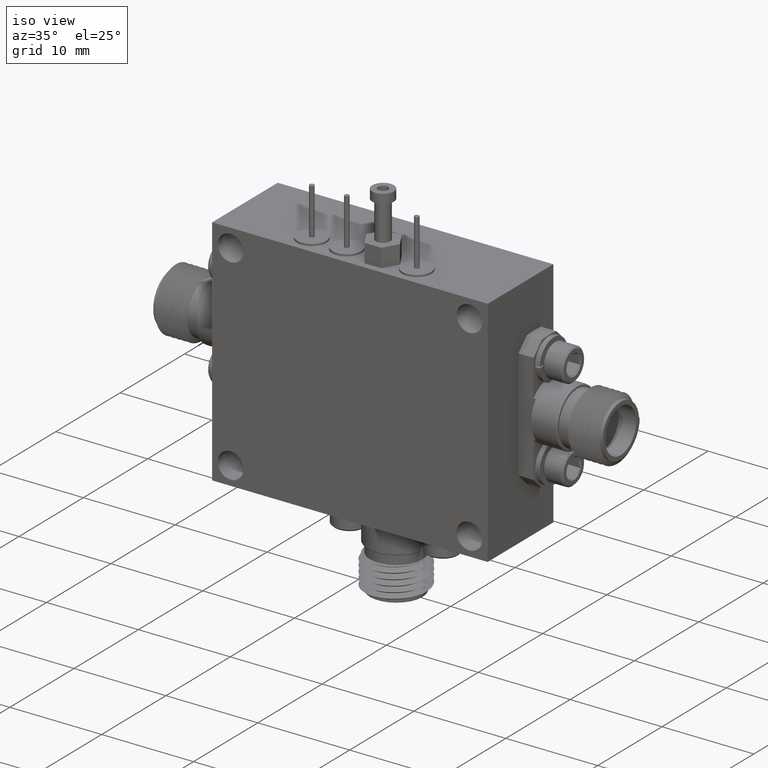
[diagram: clean part render]
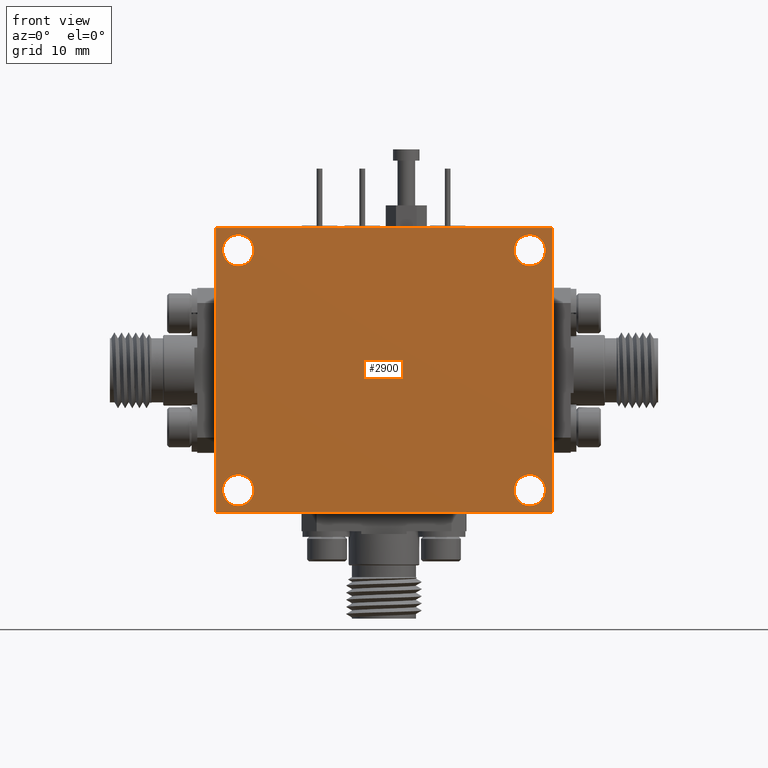
[diagram: tour spotlight — one face highlighted and labeled with its STEP entity id]
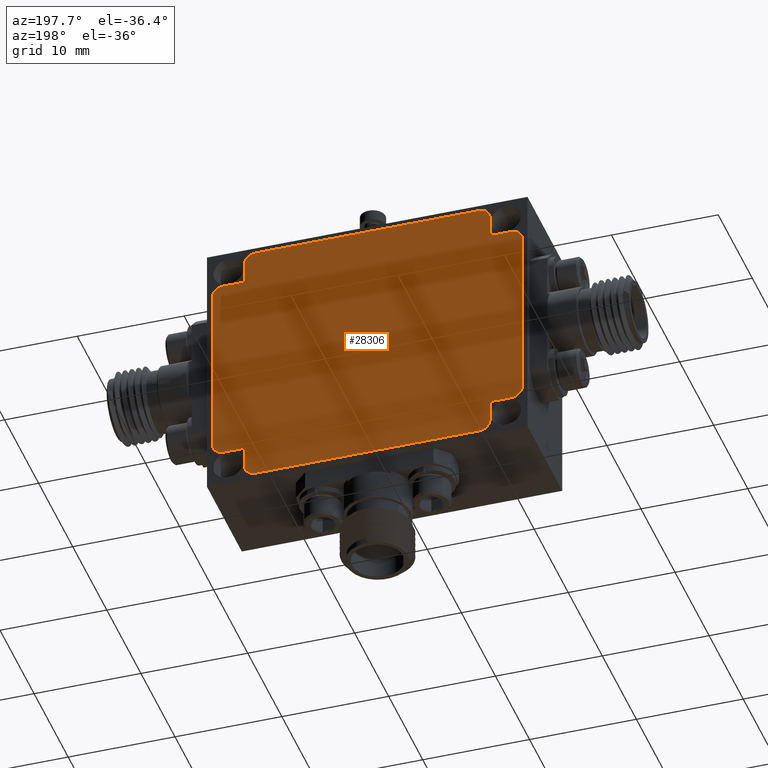
[diagram: tour spotlight — one face highlighted and labeled with its STEP entity id]
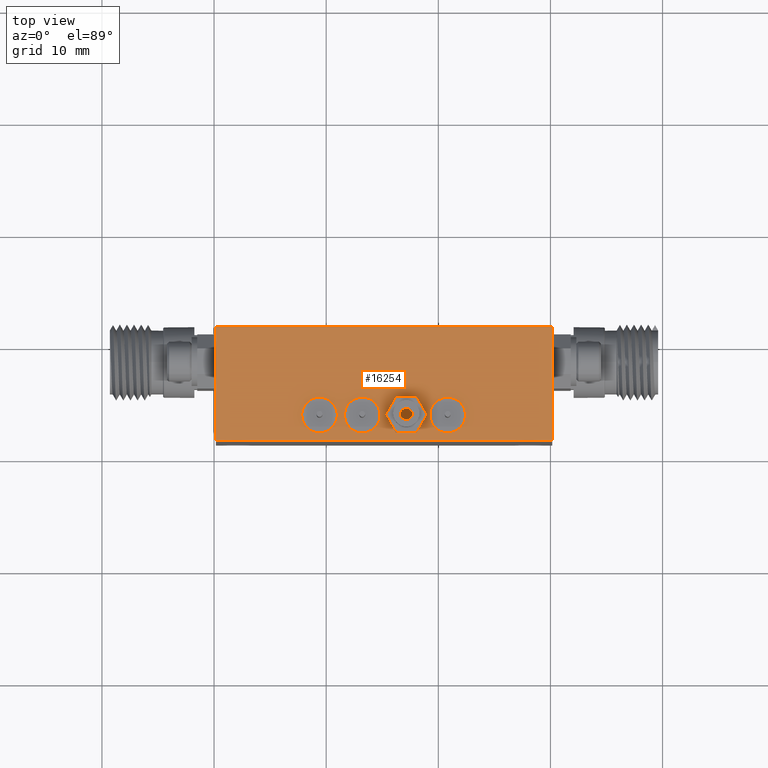
[diagram: tour spotlight — one face highlighted and labeled with its STEP entity id]
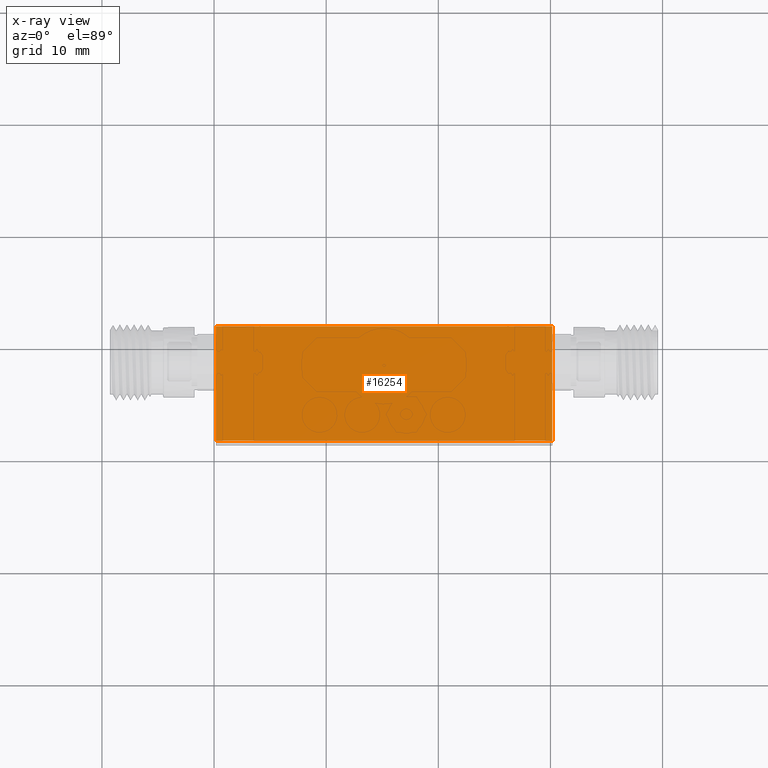
[diagram: x-ray of the same camera — body ghosted, this tour face saturated]
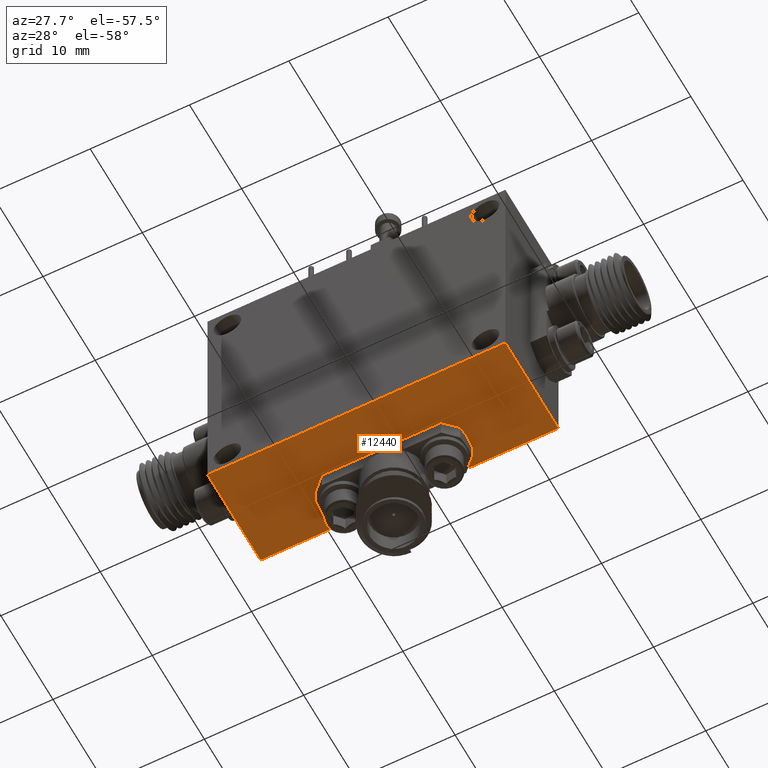
[diagram: tour spotlight — one face highlighted and labeled with its STEP entity id]
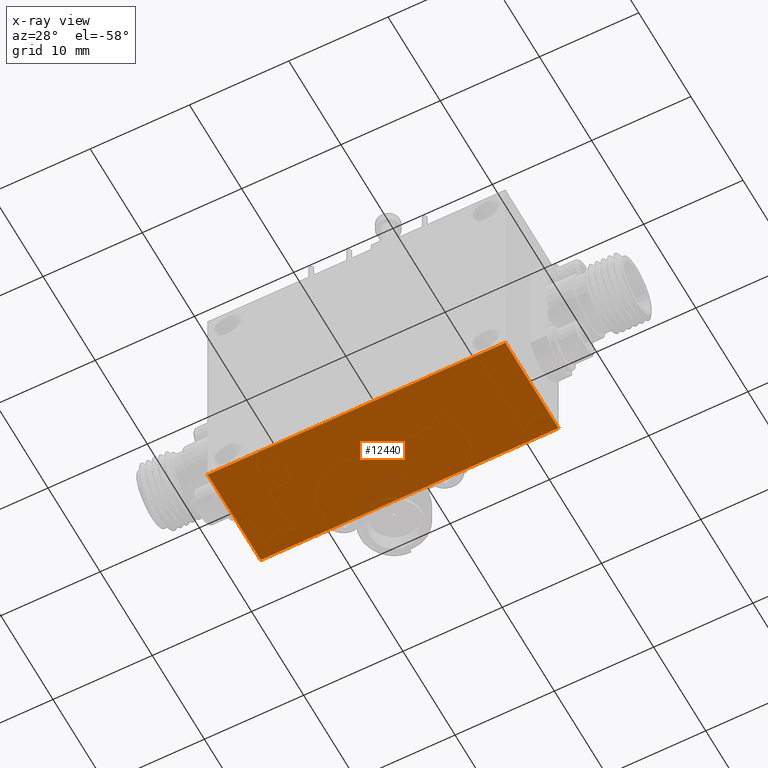
[diagram: x-ray of the same camera — body ghosted, this tour face saturated]
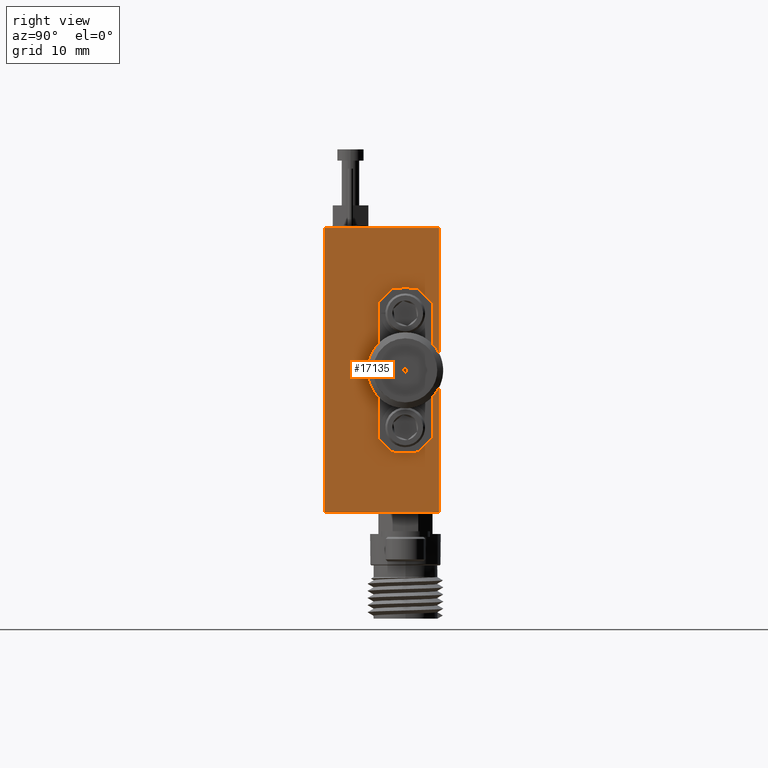
[diagram: tour spotlight — one face highlighted and labeled with its STEP entity id]
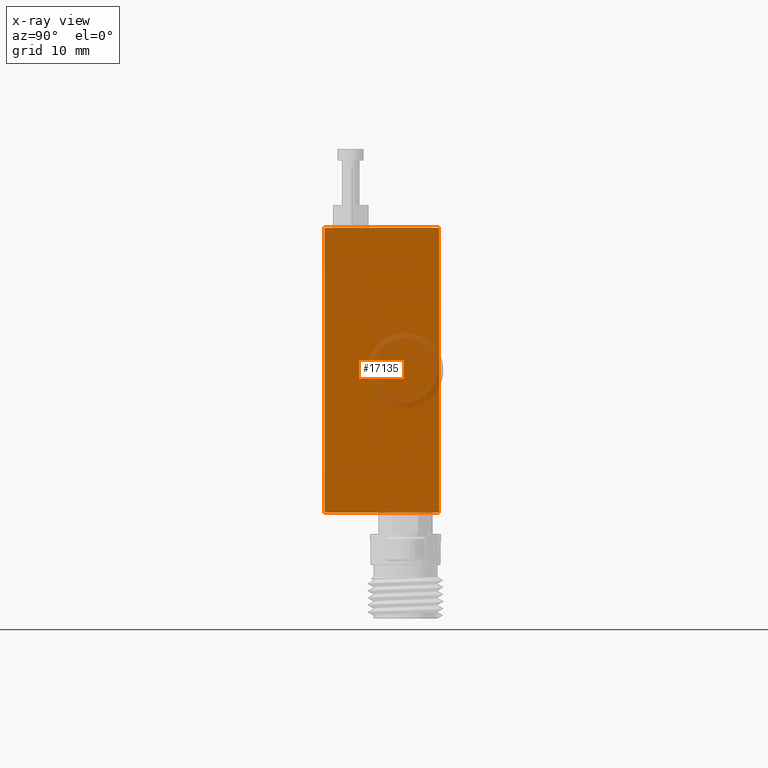
[diagram: x-ray of the same camera — body ghosted, this tour face saturated]
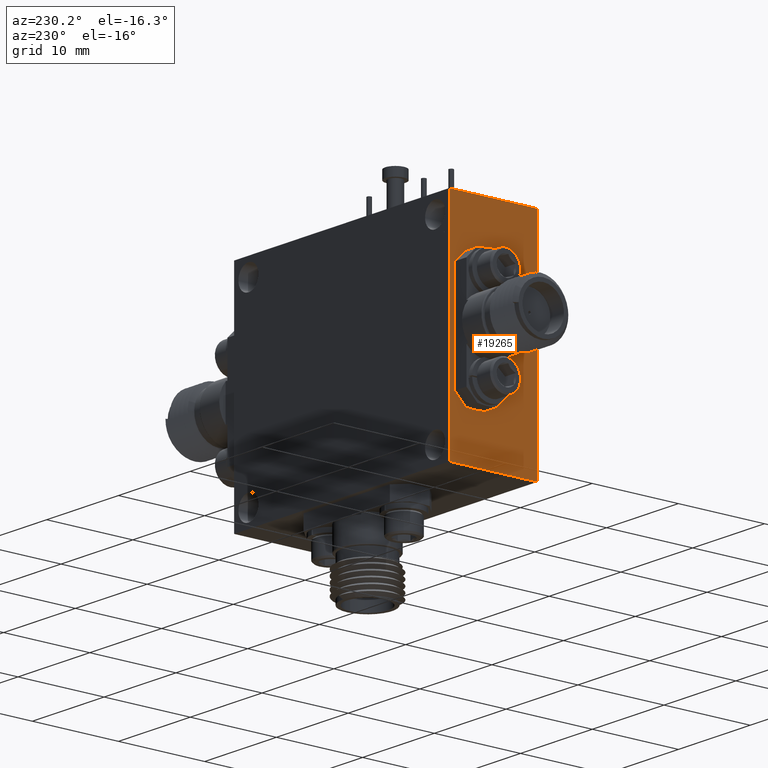
[diagram: tour spotlight — one face highlighted and labeled with its STEP entity id]
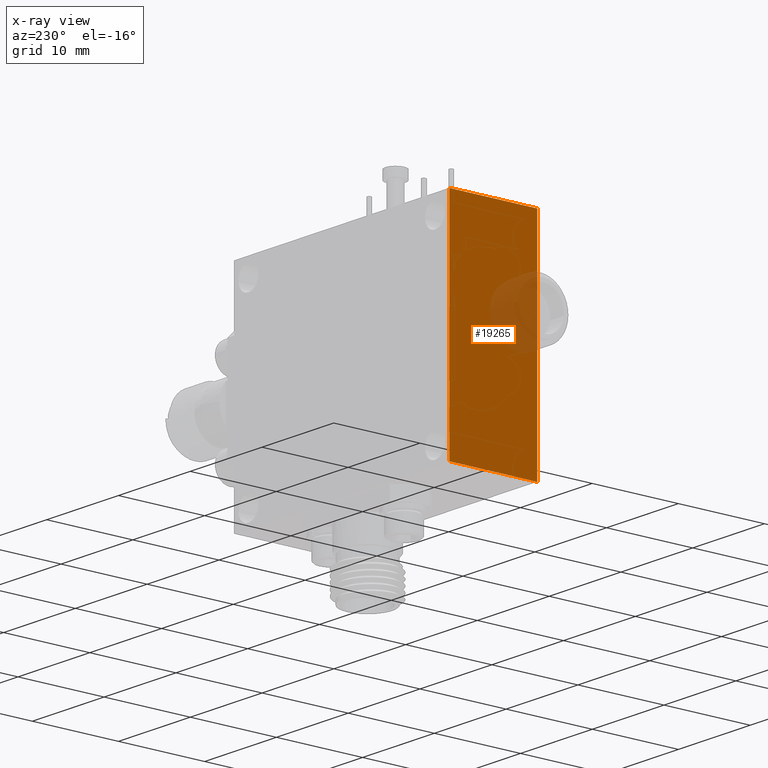
[diagram: x-ray of the same camera — body ghosted, this tour face saturated]
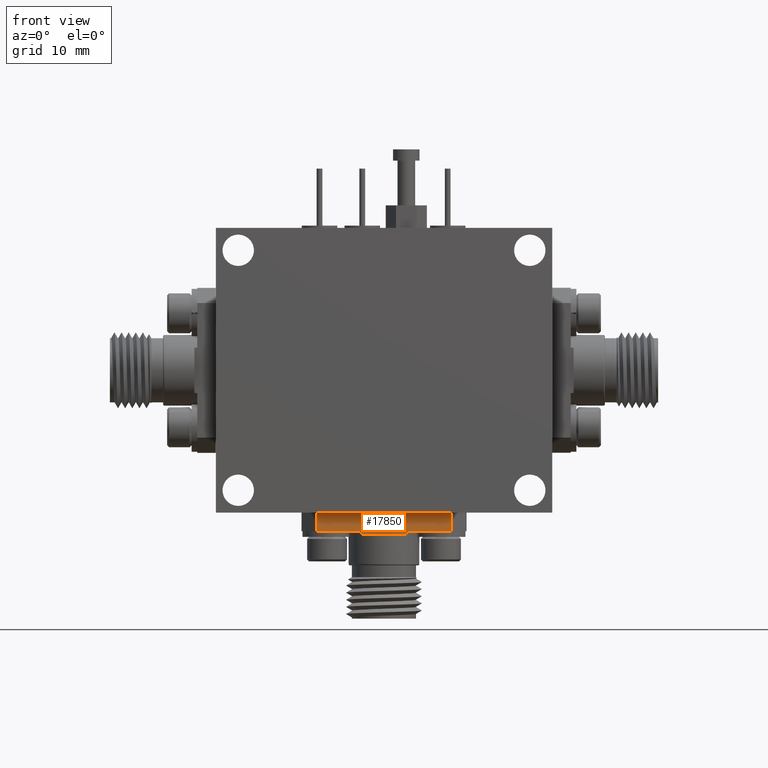
[diagram: tour spotlight — one face highlighted and labeled with its STEP entity id]
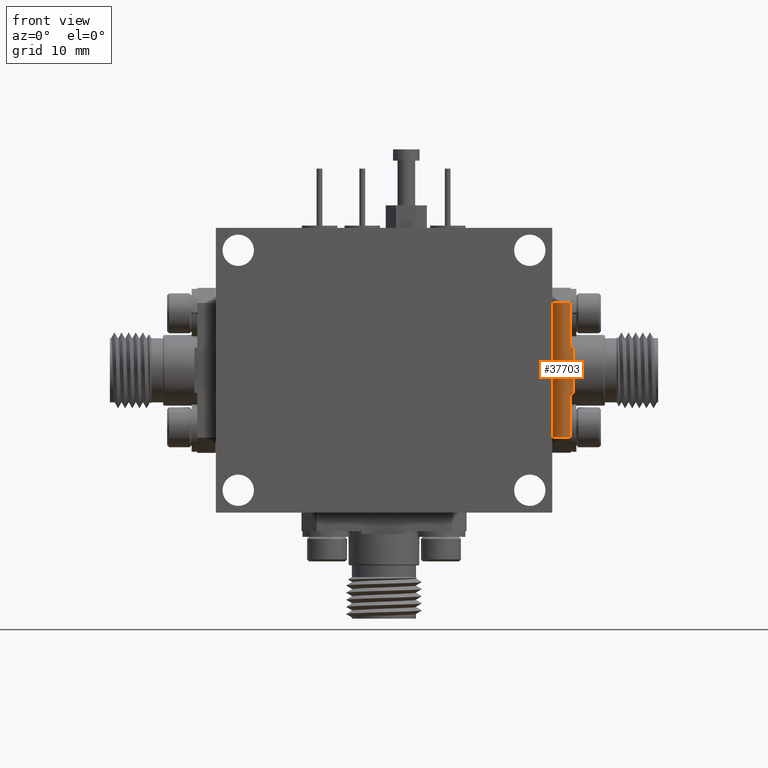
[diagram: tour spotlight — one face highlighted and labeled with its STEP entity id]
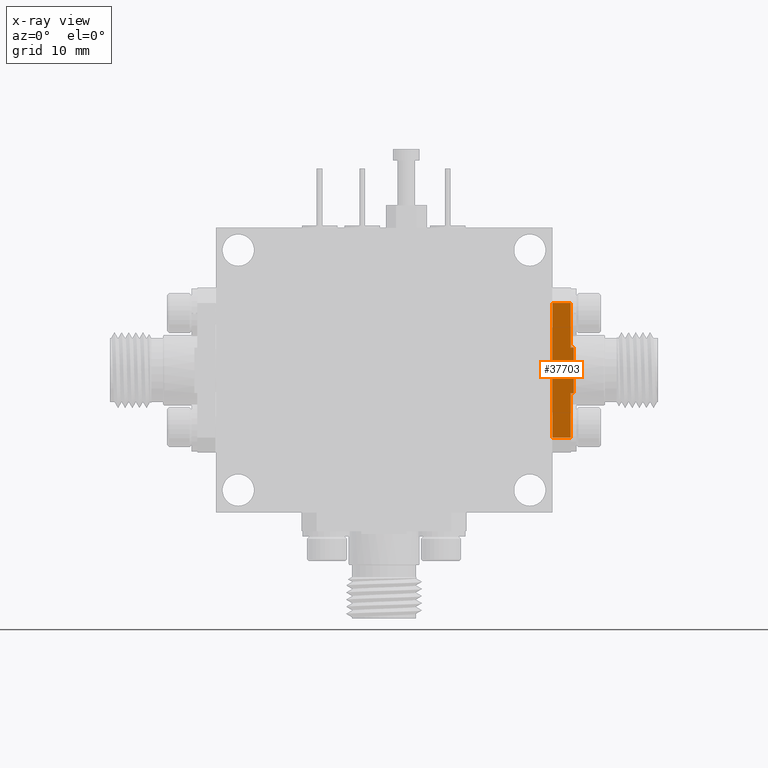
[diagram: x-ray of the same camera — body ghosted, this tour face saturated]
A machine part: a face-by-face anatomy tour. The part has 803 B-rep faces; the first image is the clean iso view, then the 8 largest visible faces are spotlighted one at a time (largest first), each with its STEP entity span.

Face 1 — front view, entity #2900. In plain terms, the highlighted planar face has unit normal (0, -1, 0).
Definition (entity closure, byte-faithful):
#1 = DIRECTION ( 'NONE',  ( -0.0000000000000000000, 1.000000000000000000, 0.0000000000000000000 ) ) ;
#10 = CARTESIAN_POINT ( 'NONE',  ( 0.08494116704093754300, 0.4428514212635166800, 1.282176587873106000 ) ) ;
#226 = AXIS2_PLACEMENT_3D ( 'NONE', #32891, #12750, #15545 ) ;
#431 = CARTESIAN_POINT ( 'NONE',  ( 1.108563214285023000, 0.4428514212635166800, 0.4396569028337359300 ) ) ;
#567 = CARTESIAN_POINT ( 'NONE',  ( 1.108563214285023000, 0.4428514212635166800, 0.3845387925975153900 ) ) ;
#1615 = VERTEX_POINT ( 'NONE', #431 ) ;
#2425 = DIRECTION ( 'NONE',  ( 0.0000000000000000000, -1.000000000000000000, 0.0000000000000000000 ) ) ;
#2900 = ADVANCED_FACE ( 'NONE', ( #27397, #33785, #17334, #30147, #7325 ), #17207, .T. ) ;
#3486 = CIRCLE ( 'NONE', #5609, 0.05511811023622041600 ) ;
#3699 = CIRCLE ( 'NONE', #226, 0.05511811023622054800 ) ;
#3820 = EDGE_LOOP ( 'NONE', ( #22749, #8959, #24982, #7919 ) ) ;
#3831 = DIRECTION ( 'NONE',  ( -0.0000000000000000000, 1.000000000000000000, 0.0000000000000000000 ) ) ;
#4006 = CARTESIAN_POINT ( 'NONE',  ( 0.006201009560614026900, 0.4428514212635166800, 1.305798635117200400 ) ) ;
#4498 = EDGE_CURVE ( 'NONE', #4856, #23455, #26879, .T. ) ;
#4614 = VECTOR ( 'NONE', #17787, 39.37007874015748100 ) ;
#4856 = VERTEX_POINT ( 'NONE', #10 ) ;
#5040 = ORIENTED_EDGE ( 'NONE', *, *, #4498, .T. ) ;
#5176 = CARTESIAN_POINT ( 'NONE',  ( 0.08494116704092871700, 0.4428514212635166800, 0.3294206823612949000 ) ) ;
#5482 = DIRECTION ( 'NONE',  ( -0.0000000000000000000, 1.000000000000000000, 0.0000000000000000000 ) ) ;
#5609 = AXIS2_PLACEMENT_3D ( 'NONE', #27277, #36192, #21658 ) ;
#6731 = ORIENTED_EDGE ( 'NONE', *, *, #11165, .T. ) ;
#7012 = CARTESIAN_POINT ( 'NONE',  ( 0.08494116704093754300, 0.4428514212635166800, 1.171940367400665000 ) ) ;
#7325 = FACE_OUTER_BOUND ( 'NONE', #3820, .T. ) ;
#7919 = ORIENTED_EDGE ( 'NONE', *, *, #26575, .F. ) ;
#8085 = DIRECTION ( 'NONE',  ( 0.0000000000000000000, 0.0000000000000000000, -1.000000000000000000 ) ) ;
#8408 = EDGE_CURVE ( 'NONE', #1615, #17969, #15705, .T. ) ;
#8959 = ORIENTED_EDGE ( 'NONE', *, *, #10994, .F. ) ;
#10048 = LINE ( 'NONE', #36813, #22382 ) ;
#10144 = DIRECTION ( 'NONE',  ( 2.731847993664263200E-016, -0.0000000000000000000, 1.000000000000000000 ) ) ;
#10923 = EDGE_LOOP ( 'NONE', ( #24063, #6731 ) ) ;
#10991 = VERTEX_POINT ( 'NONE', #29549 ) ;
#10994 = EDGE_CURVE ( 'NONE', #10991, #34206, #36619, .T. ) ;
#11143 = EDGE_CURVE ( 'NONE', #23455, #4856, #16934, .T. ) ;
#11165 = EDGE_CURVE ( 'NONE', #34556, #27562, #21061, .T. ) ;
#11230 = DIRECTION ( 'NONE',  ( 0.0000000000000000000, 0.0000000000000000000, -1.000000000000000000 ) ) ;
#11339 = EDGE_CURVE ( 'NONE', #17969, #1615, #3699, .T. ) ;
#11937 = DIRECTION ( 'NONE',  ( -2.731847993664263200E-016, 0.0000000000000000000, -1.000000000000000000 ) ) ;
#11975 = AXIS2_PLACEMENT_3D ( 'NONE', #31770, #5482, #31645 ) ;
#12356 = CARTESIAN_POINT ( 'NONE',  ( 1.108563214285032100, 0.4428514212635166800, 1.171940367400665000 ) ) ;
#12750 = DIRECTION ( 'NONE',  ( -0.0000000000000000000, 1.000000000000000000, 0.0000000000000000000 ) ) ;
#12918 = CARTESIAN_POINT ( 'NONE',  ( 1.108563214285032100, 0.4428514212635166800, 1.227058477636885400 ) ) ;
#12988 = EDGE_CURVE ( 'NONE', #27562, #34556, #30107, .T. ) ;
#13590 = VERTEX_POINT ( 'NONE', #26064 ) ;
#14881 = ORIENTED_EDGE ( 'NONE', *, *, #8408, .T. ) ;
#15224 = AXIS2_PLACEMENT_3D ( 'NONE', #19904, #2425, #20163 ) ;
#15545 = DIRECTION ( 'NONE',  ( 0.0000000000000000000, 0.0000000000000000000, -1.000000000000000000 ) ) ;
#15705 = CIRCLE ( 'NONE', #25809, 0.05511811023622054800 ) ;
#16394 = EDGE_CURVE ( 'NONE', #24093, #10991, #26374, .T. ) ;
#16781 = DIRECTION ( 'NONE',  ( -0.0000000000000000000, 1.000000000000000000, 0.0000000000000000000 ) ) ;
#16934 = CIRCLE ( 'NONE', #11975, 0.05511811023622041600 ) ;
#17084 = ORIENTED_EDGE ( 'NONE', *, *, #20783, .T. ) ;
#17207 = PLANE ( 'NONE',  #15224 ) ;
#17334 = FACE_BOUND ( 'NONE', #27082, .T. ) ;
#17557 = AXIS2_PLACEMENT_3D ( 'NONE', #12918, #3831, #30003 ) ;
#17787 = DIRECTION ( 'NONE',  ( -1.000000000000000000, -0.0000000000000000000, -0.0000000000000000000 ) ) ;
#17969 = VERTEX_POINT ( 'NONE', #35664 ) ;
#18003 = DIRECTION ( 'NONE',  ( 0.0000000000000000000, 0.0000000000000000000, -1.000000000000000000 ) ) ;
#18017 = VERTEX_POINT ( 'NONE', #12356 ) ;
#18031 = CARTESIAN_POINT ( 'NONE',  ( 0.006201009560613753700, 0.4428514212635166800, 0.3057986351172003500 ) ) ;
#18429 = EDGE_LOOP ( 'NONE', ( #25125, #17084 ) ) ;
#18581 = VECTOR ( 'NONE', #11937, 39.37007874015748100 ) ;
#18832 = CARTESIAN_POINT ( 'NONE',  ( 1.187303371765338500, 0.4428514212635166800, 1.305798635117200400 ) ) ;
#19017 = CARTESIAN_POINT ( 'NONE',  ( 0.006201009560614026900, 0.4428514212635166800, 1.305798635117200400 ) ) ;
#19274 = CARTESIAN_POINT ( 'NONE',  ( 0.08494116704093754300, 0.4428514212635166800, 1.227058477636885400 ) ) ;
#19904 = CARTESIAN_POINT ( 'NONE',  ( 0.006201009560614026900, 0.4428514212635166800, 1.305798635117200400 ) ) ;
#20163 = DIRECTION ( 'NONE',  ( 0.0000000000000000000, 0.0000000000000000000, -1.000000000000000000 ) ) ;
#20413 = CARTESIAN_POINT ( 'NONE',  ( 0.006201009560613753700, 0.4428514212635166800, 0.3057986351172003500 ) ) ;
#20783 = EDGE_CURVE ( 'NONE', #18017, #13590, #22658, .T. ) ;
#20849 = DIRECTION ( 'NONE',  ( -0.0000000000000000000, 1.000000000000000000, 0.0000000000000000000 ) ) ;
#21061 = CIRCLE ( 'NONE', #36881, 0.05511811023622047900 ) ;
#21144 = VECTOR ( 'NONE', #10144, 39.37007874015748100 ) ;
#21179 = AXIS2_PLACEMENT_3D ( 'NONE', #19274, #22481, #8085 ) ;
#21585 = LINE ( 'NONE', #4006, #21144 ) ;
#21658 = DIRECTION ( 'NONE',  ( 0.0000000000000000000, 0.0000000000000000000, -1.000000000000000000 ) ) ;
#22382 = VECTOR ( 'NONE', #28384, 39.37007874015748100 ) ;
#22481 = DIRECTION ( 'NONE',  ( -0.0000000000000000000, 1.000000000000000000, 0.0000000000000000000 ) ) ;
#22658 = CIRCLE ( 'NONE', #17557, 0.05511811023622041600 ) ;
#22749 = ORIENTED_EDGE ( 'NONE', *, *, #37836, .F. ) ;
#23455 = VERTEX_POINT ( 'NONE', #7012 ) ;
#24063 = ORIENTED_EDGE ( 'NONE', *, *, #12988, .T. ) ;
#24093 = VERTEX_POINT ( 'NONE', #18832 ) ;
#24982 = ORIENTED_EDGE ( 'NONE', *, *, #16394, .F. ) ;
#25125 = ORIENTED_EDGE ( 'NONE', *, *, #33279, .T. ) ;
#25809 = AXIS2_PLACEMENT_3D ( 'NONE', #567, #20849, #18003 ) ;
#26064 = CARTESIAN_POINT ( 'NONE',  ( 1.108563214285032100, 0.4428514212635166800, 1.282176587873106000 ) ) ;
#26374 = LINE ( 'NONE', #29403, #18581 ) ;
#26528 = ORIENTED_EDGE ( 'NONE', *, *, #11339, .T. ) ;
#26575 = EDGE_CURVE ( 'NONE', #28386, #24093, #10048, .T. ) ;
#26879 = CIRCLE ( 'NONE', #21179, 0.05511811023622041600 ) ;
#27082 = EDGE_LOOP ( 'NONE', ( #5040, #36145 ) ) ;
#27277 = CARTESIAN_POINT ( 'NONE',  ( 1.108563214285032100, 0.4428514212635166800, 1.227058477636885400 ) ) ;
#27397 = FACE_BOUND ( 'NONE', #28733, .T. ) ;
#27562 = VERTEX_POINT ( 'NONE', #31060 ) ;
#28384 = DIRECTION ( 'NONE',  ( 1.000000000000000000, 0.0000000000000000000, 0.0000000000000000000 ) ) ;
#28386 = VERTEX_POINT ( 'NONE', #19017 ) ;
#28520 = DIRECTION ( 'NONE',  ( 0.0000000000000000000, 0.0000000000000000000, -1.000000000000000000 ) ) ;
#28733 = EDGE_LOOP ( 'NONE', ( #14881, #26528 ) ) ;
#29403 = CARTESIAN_POINT ( 'NONE',  ( 1.187303371765338500, 0.4428514212635166800, 1.305798635117200400 ) ) ;
#29549 = CARTESIAN_POINT ( 'NONE',  ( 1.187303371765338100, 0.4428514212635166800, 0.3057986351172003500 ) ) ;
#30003 = DIRECTION ( 'NONE',  ( 0.0000000000000000000, 0.0000000000000000000, -1.000000000000000000 ) ) ;
#30107 = CIRCLE ( 'NONE', #36942, 0.05511811023622047900 ) ;
#30147 = FACE_BOUND ( 'NONE', #10923, .T. ) ;
#31060 = CARTESIAN_POINT ( 'NONE',  ( 0.08494116704092871700, 0.4428514212635166800, 0.4396569028337358700 ) ) ;
#31597 = CARTESIAN_POINT ( 'NONE',  ( 0.08494116704092871700, 0.4428514212635166800, 0.3845387925975153900 ) ) ;
#31645 = DIRECTION ( 'NONE',  ( 0.0000000000000000000, 0.0000000000000000000, -1.000000000000000000 ) ) ;
#31770 = CARTESIAN_POINT ( 'NONE',  ( 0.08494116704093754300, 0.4428514212635166800, 1.227058477636885400 ) ) ;
#32165 = CARTESIAN_POINT ( 'NONE',  ( 0.08494116704092871700, 0.4428514212635166800, 0.3845387925975153900 ) ) ;
#32891 = CARTESIAN_POINT ( 'NONE',  ( 1.108563214285023000, 0.4428514212635166800, 0.3845387925975153900 ) ) ;
#33279 = EDGE_CURVE ( 'NONE', #13590, #18017, #3486, .T. ) ;
#33785 = FACE_BOUND ( 'NONE', #18429, .T. ) ;
#34206 = VERTEX_POINT ( 'NONE', #20413 ) ;
#34556 = VERTEX_POINT ( 'NONE', #5176 ) ;
#35664 = CARTESIAN_POINT ( 'NONE',  ( 1.108563214285023000, 0.4428514212635166800, 0.3294206823612948500 ) ) ;
#36145 = ORIENTED_EDGE ( 'NONE', *, *, #11143, .T. ) ;
#36192 = DIRECTION ( 'NONE',  ( -0.0000000000000000000, 1.000000000000000000, 0.0000000000000000000 ) ) ;
#36619 = LINE ( 'NONE', #18031, #4614 ) ;
#36813 = CARTESIAN_POINT ( 'NONE',  ( 0.006201009560614026900, 0.4428514212635166800, 1.305798635117200400 ) ) ;
#36881 = AXIS2_PLACEMENT_3D ( 'NONE', #32165, #1, #11230 ) ;
#36942 = AXIS2_PLACEMENT_3D ( 'NONE', #31597, #16781, #28520 ) ;
#37836 = EDGE_CURVE ( 'NONE', #34206, #28386, #21585, .T. ) ;

Face 2 — auxiliary view, entity #28306. In plain terms, the highlighted planar face has unit normal (0, 1, 0).
Definition (entity closure, byte-faithful):
#311 = VECTOR ( 'NONE', #13000, 39.37007874015748100 ) ;
#550 = CARTESIAN_POINT ( 'NONE',  ( 1.010138017434629300, 0.8444655944918630900, 0.3648537532274366300 ) ) ;
#954 = DIRECTION ( 'NONE',  ( 0.0000000000000000000, 0.0000000000000000000, 1.000000000000000000 ) ) ;
#1314 = DIRECTION ( 'NONE',  ( 0.0000000000000000000, 1.000000000000000000, 0.0000000000000000000 ) ) ;
#1512 = AXIS2_PLACEMENT_3D ( 'NONE', #2166, #25536, #37285 ) ;
#2166 = CARTESIAN_POINT ( 'NONE',  ( 0.06525612767084999800, 0.8444655944918630900, 0.4829639894479091900 ) ) ;
#2332 = DIRECTION ( 'NONE',  ( 0.0000000000000000000, 0.0000000000000000000, 1.000000000000000000 ) ) ;
#2433 = ORIENTED_EDGE ( 'NONE', *, *, #30921, .T. ) ;
#2652 = VECTOR ( 'NONE', #30892, 39.37007874015748100 ) ;
#2707 = CARTESIAN_POINT ( 'NONE',  ( 1.010138017434646800, 0.8444655944918630900, 1.286113595747121700 ) ) ;
#2759 = EDGE_CURVE ( 'NONE', #29005, #25396, #14178, .T. ) ;
#2911 = ORIENTED_EDGE ( 'NONE', *, *, #18225, .T. ) ;
#3503 = CARTESIAN_POINT ( 'NONE',  ( 0.1833663638913221600, 0.8444655944918630900, 1.246743517006964100 ) ) ;
#3526 = VERTEX_POINT ( 'NONE', #18166 ) ;
#3543 = VERTEX_POINT ( 'NONE', #16989 ) ;
#4280 = CIRCLE ( 'NONE', #32598, 0.03937007874015751400 ) ;
#4287 = CIRCLE ( 'NONE', #7658, 0.03937007874015751400 ) ;
#5154 = VERTEX_POINT ( 'NONE', #17952 ) ;
#5418 = CIRCLE ( 'NONE', #35822, 0.03937007874015751400 ) ;
#5640 = CARTESIAN_POINT ( 'NONE',  ( 1.128248253655102200, 0.8444655944918630900, 1.128633280786491800 ) ) ;
#5788 = CARTESIAN_POINT ( 'NONE',  ( 0.1439962851511646700, 0.8444655944918630900, 1.246743517006963800 ) ) ;
#5976 = EDGE_CURVE ( 'NONE', #3526, #23065, #14986, .T. ) ;
#6040 = DIRECTION ( 'NONE',  ( 0.0000000000000000000, 1.000000000000000000, -0.0000000000000000000 ) ) ;
#6442 = CARTESIAN_POINT ( 'NONE',  ( 1.049508096174804700, 0.8444655944918630900, 1.168003359526649200 ) ) ;
#6450 = DIRECTION ( 'NONE',  ( 0.0000000000000000000, 0.0000000000000000000, -1.000000000000000000 ) ) ;
#6544 = LINE ( 'NONE', #33731, #36664 ) ;
#6742 = ORIENTED_EDGE ( 'NONE', *, *, #22742, .T. ) ;
#6988 = VERTEX_POINT ( 'NONE', #5788 ) ;
#7087 = CARTESIAN_POINT ( 'NONE',  ( 1.010138017434629100, 0.8444655944918630900, 0.3254836744872791100 ) ) ;
#7214 = LINE ( 'NONE', #11368, #22709 ) ;
#7351 = DIRECTION ( 'NONE',  ( 1.000000000000000000, 0.0000000000000000000, 0.0000000000000000000 ) ) ;
#7510 = CARTESIAN_POINT ( 'NONE',  ( 1.128248253655102000, 0.8444655944918630900, 1.168003359526649200 ) ) ;
#7607 = LINE ( 'NONE', #24351, #311 ) ;
#7658 = AXIS2_PLACEMENT_3D ( 'NONE', #3503, #32591, #6450 ) ;
#7694 = VERTEX_POINT ( 'NONE', #27109 ) ;
#7816 = VERTEX_POINT ( 'NONE', #7087 ) ;
#7952 = AXIS2_PLACEMENT_3D ( 'NONE', #550, #20960, #29768 ) ;
#8015 = DIRECTION ( 'NONE',  ( 0.0000000000000000000, 0.0000000000000000000, 1.000000000000000000 ) ) ;
#8110 = EDGE_CURVE ( 'NONE', #11663, #7816, #34442, .T. ) ;
#8317 = ORIENTED_EDGE ( 'NONE', *, *, #36718, .T. ) ;
#8700 = CARTESIAN_POINT ( 'NONE',  ( 1.049508096174786900, 0.8444655944918630900, 0.4435939107077516700 ) ) ;
#9140 = VECTOR ( 'NONE', #20982, 39.37007874015748100 ) ;
#9443 = VERTEX_POINT ( 'NONE', #19701 ) ;
#9959 = VERTEX_POINT ( 'NONE', #2707 ) ;
#10038 = ORIENTED_EDGE ( 'NONE', *, *, #5976, .T. ) ;
#10127 = ORIENTED_EDGE ( 'NONE', *, *, #21294, .T. ) ;
#10131 = CARTESIAN_POINT ( 'NONE',  ( 0.1833663638913224400, 0.8444655944918630900, 0.3648537532274366300 ) ) ;
#10372 = DIRECTION ( 'NONE',  ( 0.0000000000000000000, -0.0000000000000000000, 1.000000000000000000 ) ) ;
#10522 = CARTESIAN_POINT ( 'NONE',  ( 1.049508096174786900, 0.8444655944918630900, 0.4435939107077516700 ) ) ;
#11174 = CARTESIAN_POINT ( 'NONE',  ( 1.128248253655102000, 0.8444655944918630900, 0.4829639894479091900 ) ) ;
#11368 = CARTESIAN_POINT ( 'NONE',  ( 1.167618332395259600, 0.8444655944918630900, 1.128633280786491600 ) ) ;
#11663 = VERTEX_POINT ( 'NONE', #23554 ) ;
#11854 = AXIS2_PLACEMENT_3D ( 'NONE', #10131, #1314, #10372 ) ;
#12076 = CIRCLE ( 'NONE', #30660, 0.03937007874015751400 ) ;
#12264 = FACE_OUTER_BOUND ( 'NONE', #24968, .T. ) ;
#12385 = ORIENTED_EDGE ( 'NONE', *, *, #26431, .T. ) ;
#12520 = CARTESIAN_POINT ( 'NONE',  ( 0.1439962851511646700, 0.8444655944918630900, 1.168003359526649200 ) ) ;
#12564 = VECTOR ( 'NONE', #18546, 39.37007874015748100 ) ;
#12578 = VERTEX_POINT ( 'NONE', #28312 ) ;
#12738 = VERTEX_POINT ( 'NONE', #23959 ) ;
#12768 = VECTOR ( 'NONE', #34722, 39.37007874015748100 ) ;
#12884 = CARTESIAN_POINT ( 'NONE',  ( 0.06525612767085049700, 0.8444655944918630900, 1.168003359526649200 ) ) ;
#12920 = CARTESIAN_POINT ( 'NONE',  ( 0.02588604893069275000, 0.8444655944918630900, 1.128633280786491600 ) ) ;
#13000 = DIRECTION ( 'NONE',  ( -1.000000000000000000, 0.0000000000000000000, 0.0000000000000000000 ) ) ;
#13242 = EDGE_CURVE ( 'NONE', #5154, #30506, #15494, .T. ) ;
#13393 = EDGE_CURVE ( 'NONE', #23065, #11663, #36023, .T. ) ;
#13434 = ORIENTED_EDGE ( 'NONE', *, *, #36639, .T. ) ;
#13706 = VECTOR ( 'NONE', #32782, 39.37007874015748100 ) ;
#13725 = ORIENTED_EDGE ( 'NONE', *, *, #8110, .T. ) ;
#13827 = DIRECTION ( 'NONE',  ( 0.0000000000000000000, 0.0000000000000000000, 1.000000000000000000 ) ) ;
#13953 = CIRCLE ( 'NONE', #17605, 0.03937007874015751400 ) ;
#13985 = DIRECTION ( 'NONE',  ( 0.0000000000000000000, 1.000000000000000000, 0.0000000000000000000 ) ) ;
#14077 = ORIENTED_EDGE ( 'NONE', *, *, #18744, .T. ) ;
#14178 = CIRCLE ( 'NONE', #1512, 0.03937007874015751400 ) ;
#14332 = CARTESIAN_POINT ( 'NONE',  ( 1.010138017434647000, 0.8444655944918630900, 1.246743517006964100 ) ) ;
#14351 = ORIENTED_EDGE ( 'NONE', *, *, #13242, .T. ) ;
#14626 = LINE ( 'NONE', #12520, #13706 ) ;
#14986 = LINE ( 'NONE', #8700, #17705 ) ;
#15039 = CARTESIAN_POINT ( 'NONE',  ( 0.1439962851511646700, 0.8444655944918630900, 1.168003359526649200 ) ) ;
#15489 = CARTESIAN_POINT ( 'NONE',  ( 0.06525612767085026100, 0.8444655944918630900, 0.4435939107077516700 ) ) ;
#15494 = LINE ( 'NONE', #29416, #36955 ) ;
#15726 = EDGE_CURVE ( 'NONE', #26004, #29005, #17683, .T. ) ;
#16078 = ORIENTED_EDGE ( 'NONE', *, *, #23089, .T. ) ;
#16989 = CARTESIAN_POINT ( 'NONE',  ( 0.1833663638913227100, 0.8444655944918630900, 0.3254836744872791100 ) ) ;
#17491 = DIRECTION ( 'NONE',  ( 0.0000000000000000000, 0.0000000000000000000, -1.000000000000000000 ) ) ;
#17512 = ORIENTED_EDGE ( 'NONE', *, *, #33295, .T. ) ;
#17605 = AXIS2_PLACEMENT_3D ( 'NONE', #32712, #27092, #954 ) ;
#17627 = CARTESIAN_POINT ( 'NONE',  ( 0.06525612767085023400, 0.8444655944918630900, 1.128633280786491800 ) ) ;
#17683 = LINE ( 'NONE', #23203, #18601 ) ;
#17705 = VECTOR ( 'NONE', #29229, 39.37007874015748100 ) ;
#17952 = CARTESIAN_POINT ( 'NONE',  ( 1.049508096174804700, 0.8444655944918630900, 1.168003359526649200 ) ) ;
#18166 = CARTESIAN_POINT ( 'NONE',  ( 1.128248253655101500, 0.8444655944918630900, 0.4435939107077516700 ) ) ;
#18225 = EDGE_CURVE ( 'NONE', #18238, #12738, #7214, .T. ) ;
#18238 = VERTEX_POINT ( 'NONE', #26289 ) ;
#18546 = DIRECTION ( 'NONE',  ( 3.702153759706603800E-016, 0.0000000000000000000, 1.000000000000000000 ) ) ;
#18601 = VECTOR ( 'NONE', #28814, 39.37007874015748100 ) ;
#18744 = EDGE_CURVE ( 'NONE', #7694, #9959, #31836, .T. ) ;
#19701 = CARTESIAN_POINT ( 'NONE',  ( 0.1439962851511649200, 0.8444655944918630900, 0.3648537532274369100 ) ) ;
#19779 = CARTESIAN_POINT ( 'NONE',  ( 0.1833663638913224400, 0.8444655944918630900, 1.286113595747121700 ) ) ;
#20210 = ORIENTED_EDGE ( 'NONE', *, *, #21954, .T. ) ;
#20305 = VERTEX_POINT ( 'NONE', #12884 ) ;
#20960 = DIRECTION ( 'NONE',  ( 0.0000000000000000000, 1.000000000000000000, 0.0000000000000000000 ) ) ;
#20982 = DIRECTION ( 'NONE',  ( -0.0000000000000000000, -0.0000000000000000000, -1.000000000000000000 ) ) ;
#21294 = EDGE_CURVE ( 'NONE', #12738, #3526, #29499, .T. ) ;
#21954 = EDGE_CURVE ( 'NONE', #25396, #36533, #31733, .T. ) ;
#22013 = VERTEX_POINT ( 'NONE', #28567 ) ;
#22161 = VECTOR ( 'NONE', #26769, 39.37007874015748100 ) ;
#22709 = VECTOR ( 'NONE', #29095, 39.37007874015748100 ) ;
#22742 = EDGE_CURVE ( 'NONE', #6988, #7694, #4287, .T. ) ;
#23065 = VERTEX_POINT ( 'NONE', #10522 ) ;
#23089 = EDGE_CURVE ( 'NONE', #9443, #26004, #6544, .T. ) ;
#23203 = CARTESIAN_POINT ( 'NONE',  ( 0.1439962851511649400, 0.8444655944918630900, 0.4435939107077516700 ) ) ;
#23554 = CARTESIAN_POINT ( 'NONE',  ( 1.049508096174786900, 0.8444655944918630900, 0.3648537532274369100 ) ) ;
#23959 = CARTESIAN_POINT ( 'NONE',  ( 1.167618332395259400, 0.8444655944918630900, 0.4829639894479094700 ) ) ;
#23997 = LINE ( 'NONE', #15039, #22161 ) ;
#24351 = CARTESIAN_POINT ( 'NONE',  ( 1.010138017434629100, 0.8444655944918630900, 0.3254836744872791100 ) ) ;
#24399 = ORIENTED_EDGE ( 'NONE', *, *, #13393, .T. ) ;
#24469 = ORIENTED_EDGE ( 'NONE', *, *, #15726, .T. ) ;
#24475 = CARTESIAN_POINT ( 'NONE',  ( 0.1439962851511649400, 0.8444655944918630900, 0.4435939107077516700 ) ) ;
#24676 = PLANE ( 'NONE',  #11854 ) ;
#24968 = EDGE_LOOP ( 'NONE', ( #16078, #24469, #25816, #20210, #8317, #28800, #34036, #6742, #14077, #13434, #12385, #14351, #2433, #2911, #10127, #10038, #24399, #13725, #17512, #37360 ) ) ;
#25396 = VERTEX_POINT ( 'NONE', #27468 ) ;
#25536 = DIRECTION ( 'NONE',  ( 0.0000000000000000000, 1.000000000000000000, 0.0000000000000000000 ) ) ;
#25816 = ORIENTED_EDGE ( 'NONE', *, *, #2759, .T. ) ;
#26004 = VERTEX_POINT ( 'NONE', #24475 ) ;
#26289 = CARTESIAN_POINT ( 'NONE',  ( 1.167618332395259600, 0.8444655944918630900, 1.128633280786491600 ) ) ;
#26431 = EDGE_CURVE ( 'NONE', #12578, #5154, #27809, .T. ) ;
#26586 = EDGE_CURVE ( 'NONE', #22013, #6988, #14626, .T. ) ;
#26769 = DIRECTION ( 'NONE',  ( 1.000000000000000000, -0.0000000000000000000, -0.0000000000000000000 ) ) ;
#27092 = DIRECTION ( 'NONE',  ( 0.0000000000000000000, 1.000000000000000000, 0.0000000000000000000 ) ) ;
#27109 = CARTESIAN_POINT ( 'NONE',  ( 0.1833663638913224400, 0.8444655944918630900, 1.286113595747121700 ) ) ;
#27468 = CARTESIAN_POINT ( 'NONE',  ( 0.02588604893069249400, 0.8444655944918630900, 0.4829639894479094700 ) ) ;
#27809 = LINE ( 'NONE', #6442, #9140 ) ;
#28115 = DIRECTION ( 'NONE',  ( -0.0000000000000000000, -0.0000000000000000000, 1.000000000000000000 ) ) ;
#28306 = ADVANCED_FACE ( 'NONE', ( #12264 ), #24676, .T. ) ;
#28312 = CARTESIAN_POINT ( 'NONE',  ( 1.049508096174804700, 0.8444655944918630900, 1.246743517006963800 ) ) ;
#28567 = CARTESIAN_POINT ( 'NONE',  ( 0.1439962851511646700, 0.8444655944918630900, 1.168003359526649200 ) ) ;
#28800 = ORIENTED_EDGE ( 'NONE', *, *, #34340, .T. ) ;
#28814 = DIRECTION ( 'NONE',  ( -1.000000000000000000, 0.0000000000000000000, 0.0000000000000000000 ) ) ;
#29005 = VERTEX_POINT ( 'NONE', #15489 ) ;
#29095 = DIRECTION ( 'NONE',  ( -4.231032868236118900E-016, 0.0000000000000000000, -1.000000000000000000 ) ) ;
#29229 = DIRECTION ( 'NONE',  ( -1.000000000000000000, -0.0000000000000000000, -0.0000000000000000000 ) ) ;
#29416 = CARTESIAN_POINT ( 'NONE',  ( 1.049508096174804700, 0.8444655944918630900, 1.168003359526649200 ) ) ;
#29499 = CIRCLE ( 'NONE', #34216, 0.03937007874015751400 ) ;
#29768 = DIRECTION ( 'NONE',  ( 0.0000000000000000000, 0.0000000000000000000, 1.000000000000000000 ) ) ;
#30506 = VERTEX_POINT ( 'NONE', #7510 ) ;
#30660 = AXIS2_PLACEMENT_3D ( 'NONE', #14332, #37699, #2332 ) ;
#30892 = DIRECTION ( 'NONE',  ( 1.000000000000000000, 0.0000000000000000000, 0.0000000000000000000 ) ) ;
#30921 = EDGE_CURVE ( 'NONE', #30506, #18238, #5418, .T. ) ;
#31733 = LINE ( 'NONE', #33345, #12564 ) ;
#31836 = LINE ( 'NONE', #19779, #2652 ) ;
#32591 = DIRECTION ( 'NONE',  ( 0.0000000000000000000, 1.000000000000000000, -0.0000000000000000000 ) ) ;
#32598 = AXIS2_PLACEMENT_3D ( 'NONE', #17627, #6040, #17491 ) ;
#32712 = CARTESIAN_POINT ( 'NONE',  ( 0.1833663638913224400, 0.8444655944918630900, 0.3648537532274366300 ) ) ;
#32782 = DIRECTION ( 'NONE',  ( 0.0000000000000000000, 0.0000000000000000000, 1.000000000000000000 ) ) ;
#33295 = EDGE_CURVE ( 'NONE', #7816, #3543, #7607, .T. ) ;
#33345 = CARTESIAN_POINT ( 'NONE',  ( 0.02588604893069251100, 0.8444655944918630900, 0.4829639894479094700 ) ) ;
#33731 = CARTESIAN_POINT ( 'NONE',  ( 0.1439962851511649400, 0.8444655944918630900, 0.4435939107077516700 ) ) ;
#33779 = EDGE_CURVE ( 'NONE', #3543, #9443, #13953, .T. ) ;
#34036 = ORIENTED_EDGE ( 'NONE', *, *, #26586, .T. ) ;
#34216 = AXIS2_PLACEMENT_3D ( 'NONE', #11174, #13985, #8015 ) ;
#34340 = EDGE_CURVE ( 'NONE', #20305, #22013, #23997, .T. ) ;
#34442 = CIRCLE ( 'NONE', #7952, 0.03937007874015751400 ) ;
#34597 = DIRECTION ( 'NONE',  ( 0.0000000000000000000, 1.000000000000000000, 0.0000000000000000000 ) ) ;
#34722 = DIRECTION ( 'NONE',  ( 0.0000000000000000000, 0.0000000000000000000, -1.000000000000000000 ) ) ;
#35822 = AXIS2_PLACEMENT_3D ( 'NONE', #5640, #34597, #13827 ) ;
#36023 = LINE ( 'NONE', #37433, #12768 ) ;
#36533 = VERTEX_POINT ( 'NONE', #12920 ) ;
#36639 = EDGE_CURVE ( 'NONE', #9959, #12578, #12076, .T. ) ;
#36664 = VECTOR ( 'NONE', #28115, 39.37007874015748100 ) ;
#36718 = EDGE_CURVE ( 'NONE', #36533, #20305, #4280, .T. ) ;
#36955 = VECTOR ( 'NONE', #7351, 39.37007874015748100 ) ;
#37285 = DIRECTION ( 'NONE',  ( 0.0000000000000000000, 0.0000000000000000000, 1.000000000000000000 ) ) ;
#37360 = ORIENTED_EDGE ( 'NONE', *, *, #33779, .T. ) ;
#37433 = CARTESIAN_POINT ( 'NONE',  ( 1.049508096174786900, 0.8444655944918630900, 0.4435939107077516700 ) ) ;
#37699 = DIRECTION ( 'NONE',  ( 0.0000000000000000000, 1.000000000000000000, 0.0000000000000000000 ) ) ;

Face 3 — top view, entity #16254. An x-ray twin of the same camera follows (body ghosted, this face saturated) — the face is partly hidden behind the body. In plain terms, the highlighted planar face has unit normal (0, 0, -1).
Definition (entity closure, byte-faithful):
#199 = EDGE_CURVE ( 'NONE', #32694, #24093, #18838, .T. ) ;
#4782 = DIRECTION ( 'NONE',  ( 1.000000000000000000, 0.0000000000000000000, 0.0000000000000000000 ) ) ;
#6273 = FACE_OUTER_BOUND ( 'NONE', #8434, .T. ) ;
#6605 = ORIENTED_EDGE ( 'NONE', *, *, #23115, .F. ) ;
#7201 = CARTESIAN_POINT ( 'NONE',  ( 1.187303371765338500, 0.8444262244131229800, 1.305798635117200400 ) ) ;
#8434 = EDGE_LOOP ( 'NONE', ( #19665, #17940, #6605, #32873 ) ) ;
#10048 = LINE ( 'NONE', #36813, #22382 ) ;
#11574 = VERTEX_POINT ( 'NONE', #35282 ) ;
#13491 = CARTESIAN_POINT ( 'NONE',  ( 0.006201009560614026900, 0.8444262244131229800, 1.305798635117200400 ) ) ;
#16254 = ADVANCED_FACE ( 'NONE', ( #6273 ), #17131, .F. ) ;
#17131 = PLANE ( 'NONE',  #24814 ) ;
#17930 = LINE ( 'NONE', #36806, #22073 ) ;
#17940 = ORIENTED_EDGE ( 'NONE', *, *, #199, .F. ) ;
#18832 = CARTESIAN_POINT ( 'NONE',  ( 1.187303371765338500, 0.4428514212635166800, 1.305798635117200400 ) ) ;
#18838 = LINE ( 'NONE', #7201, #24368 ) ;
#19017 = CARTESIAN_POINT ( 'NONE',  ( 0.006201009560614026900, 0.4428514212635166800, 1.305798635117200400 ) ) ;
#19665 = ORIENTED_EDGE ( 'NONE', *, *, #26575, .T. ) ;
#20358 = DIRECTION ( 'NONE',  ( -1.000000000000000000, 0.0000000000000000000, -0.0000000000000000000 ) ) ;
#20441 = EDGE_CURVE ( 'NONE', #11574, #28386, #34978, .T. ) ;
#21242 = CARTESIAN_POINT ( 'NONE',  ( 1.187303371765338500, 0.8444262244131229800, 1.305798635117200400 ) ) ;
#22073 = VECTOR ( 'NONE', #4782, 39.37007874015748100 ) ;
#22382 = VECTOR ( 'NONE', #28384, 39.37007874015748100 ) ;
#23115 = EDGE_CURVE ( 'NONE', #11574, #32694, #17930, .T. ) ;
#24093 = VERTEX_POINT ( 'NONE', #18832 ) ;
#24368 = VECTOR ( 'NONE', #30665, 39.37007874015748100 ) ;
#24814 = AXIS2_PLACEMENT_3D ( 'NONE', #31070, #31712, #20358 ) ;
#26575 = EDGE_CURVE ( 'NONE', #28386, #24093, #10048, .T. ) ;
#27223 = VECTOR ( 'NONE', #33379, 39.37007874015748100 ) ;
#28384 = DIRECTION ( 'NONE',  ( 1.000000000000000000, 0.0000000000000000000, 0.0000000000000000000 ) ) ;
#28386 = VERTEX_POINT ( 'NONE', #19017 ) ;
#30665 = DIRECTION ( 'NONE',  ( -0.0000000000000000000, -1.000000000000000000, -0.0000000000000000000 ) ) ;
#31070 = CARTESIAN_POINT ( 'NONE',  ( 0.006201009560614026900, 0.8444262244131229800, 1.305798635117200400 ) ) ;
#31712 = DIRECTION ( 'NONE',  ( 0.0000000000000000000, 0.0000000000000000000, -1.000000000000000000 ) ) ;
#32694 = VERTEX_POINT ( 'NONE', #21242 ) ;
#32873 = ORIENTED_EDGE ( 'NONE', *, *, #20441, .T. ) ;
#33379 = DIRECTION ( 'NONE',  ( -0.0000000000000000000, -1.000000000000000000, -0.0000000000000000000 ) ) ;
#34978 = LINE ( 'NONE', #13491, #27223 ) ;
#35282 = CARTESIAN_POINT ( 'NONE',  ( 0.006201009560614026900, 0.8444262244131229800, 1.305798635117200400 ) ) ;
#36806 = CARTESIAN_POINT ( 'NONE',  ( 0.006201009560614026900, 0.8444262244131229800, 1.305798635117200400 ) ) ;
#36813 = CARTESIAN_POINT ( 'NONE',  ( 0.006201009560614026900, 0.4428514212635166800, 1.305798635117200400 ) ) ;

Face 4 — auxiliary view, entity #12440. An x-ray twin of the same camera follows (body ghosted, this face saturated) — the face is partly hidden behind the body. In plain terms, the highlighted planar face has unit normal (0, 0, 1).
Definition (entity closure, byte-faithful):
#2179 = LINE ( 'NONE', #2451, #24589 ) ;
#2451 = CARTESIAN_POINT ( 'NONE',  ( 0.006201009560613753700, 0.8444262244131229800, 0.3057986351172003500 ) ) ;
#4512 = ORIENTED_EDGE ( 'NONE', *, *, #10994, .T. ) ;
#4614 = VECTOR ( 'NONE', #17787, 39.37007874015748100 ) ;
#5301 = EDGE_CURVE ( 'NONE', #33036, #34206, #15038, .T. ) ;
#5733 = EDGE_CURVE ( 'NONE', #11210, #33036, #2179, .T. ) ;
#7526 = CARTESIAN_POINT ( 'NONE',  ( 1.187303371765338100, 0.8444262244131229800, 0.3057986351172003500 ) ) ;
#7822 = CARTESIAN_POINT ( 'NONE',  ( 0.006201009560613753700, 0.8444262244131229800, 0.3057986351172003500 ) ) ;
#10991 = VERTEX_POINT ( 'NONE', #29549 ) ;
#10994 = EDGE_CURVE ( 'NONE', #10991, #34206, #36619, .T. ) ;
#11210 = VERTEX_POINT ( 'NONE', #20019 ) ;
#12440 = ADVANCED_FACE ( 'NONE', ( #31057 ), #36375, .F. ) ;
#15038 = LINE ( 'NONE', #33383, #19105 ) ;
#15686 = ORIENTED_EDGE ( 'NONE', *, *, #5301, .F. ) ;
#16027 = DIRECTION ( 'NONE',  ( -0.0000000000000000000, -1.000000000000000000, -0.0000000000000000000 ) ) ;
#16821 = CARTESIAN_POINT ( 'NONE',  ( 0.006201009560613753700, 0.8444262244131229800, 0.3057986351172003500 ) ) ;
#17787 = DIRECTION ( 'NONE',  ( -1.000000000000000000, -0.0000000000000000000, -0.0000000000000000000 ) ) ;
#18031 = CARTESIAN_POINT ( 'NONE',  ( 0.006201009560613753700, 0.4428514212635166800, 0.3057986351172003500 ) ) ;
#18957 = DIRECTION ( 'NONE',  ( -0.0000000000000000000, -1.000000000000000000, -0.0000000000000000000 ) ) ;
#19105 = VECTOR ( 'NONE', #16027, 39.37007874015748100 ) ;
#19516 = DIRECTION ( 'NONE',  ( 1.000000000000000000, 0.0000000000000000000, -0.0000000000000000000 ) ) ;
#20019 = CARTESIAN_POINT ( 'NONE',  ( 1.187303371765338100, 0.8444262244131229800, 0.3057986351172003500 ) ) ;
#20413 = CARTESIAN_POINT ( 'NONE',  ( 0.006201009560613753700, 0.4428514212635166800, 0.3057986351172003500 ) ) ;
#22090 = ORIENTED_EDGE ( 'NONE', *, *, #5733, .F. ) ;
#24547 = VECTOR ( 'NONE', #18957, 39.37007874015748100 ) ;
#24589 = VECTOR ( 'NONE', #28608, 39.37007874015748100 ) ;
#28608 = DIRECTION ( 'NONE',  ( -1.000000000000000000, -0.0000000000000000000, -0.0000000000000000000 ) ) ;
#29549 = CARTESIAN_POINT ( 'NONE',  ( 1.187303371765338100, 0.4428514212635166800, 0.3057986351172003500 ) ) ;
#31050 = ORIENTED_EDGE ( 'NONE', *, *, #32378, .T. ) ;
#31057 = FACE_OUTER_BOUND ( 'NONE', #36815, .T. ) ;
#31292 = AXIS2_PLACEMENT_3D ( 'NONE', #7822, #37272, #19516 ) ;
#32378 = EDGE_CURVE ( 'NONE', #11210, #10991, #32765, .T. ) ;
#32765 = LINE ( 'NONE', #7526, #24547 ) ;
#33036 = VERTEX_POINT ( 'NONE', #16821 ) ;
#33383 = CARTESIAN_POINT ( 'NONE',  ( 0.006201009560613753700, 0.8444262244131229800, 0.3057986351172003500 ) ) ;
#34206 = VERTEX_POINT ( 'NONE', #20413 ) ;
#36375 = PLANE ( 'NONE',  #31292 ) ;
#36619 = LINE ( 'NONE', #18031, #4614 ) ;
#36815 = EDGE_LOOP ( 'NONE', ( #4512, #15686, #22090, #31050 ) ) ;
#37272 = DIRECTION ( 'NONE',  ( 0.0000000000000000000, 0.0000000000000000000, 1.000000000000000000 ) ) ;

Face 5 — right view, entity #17135. An x-ray twin of the same camera follows (body ghosted, this face saturated) — the face is partly hidden behind the body. In plain terms, the highlighted planar face has unit normal (-1, 0, 0).
Definition (entity closure, byte-faithful):
#199 = EDGE_CURVE ( 'NONE', #32694, #24093, #18838, .T. ) ;
#7201 = CARTESIAN_POINT ( 'NONE',  ( 1.187303371765338500, 0.8444262244131229800, 1.305798635117200400 ) ) ;
#7526 = CARTESIAN_POINT ( 'NONE',  ( 1.187303371765338100, 0.8444262244131229800, 0.3057986351172003500 ) ) ;
#7529 = PLANE ( 'NONE',  #21313 ) ;
#8283 = CARTESIAN_POINT ( 'NONE',  ( 1.187303371765338500, 0.8444262244131229800, 1.305798635117200400 ) ) ;
#8560 = EDGE_CURVE ( 'NONE', #32694, #11210, #9790, .T. ) ;
#9790 = LINE ( 'NONE', #8283, #22125 ) ;
#10432 = DIRECTION ( 'NONE',  ( -1.000000000000000000, 0.0000000000000000000, 2.731847993664263200E-016 ) ) ;
#10991 = VERTEX_POINT ( 'NONE', #29549 ) ;
#11210 = VERTEX_POINT ( 'NONE', #20019 ) ;
#11937 = DIRECTION ( 'NONE',  ( -2.731847993664263200E-016, 0.0000000000000000000, -1.000000000000000000 ) ) ;
#14008 = DIRECTION ( 'NONE',  ( -2.731847993664263200E-016, 0.0000000000000000000, -1.000000000000000000 ) ) ;
#16286 = DIRECTION ( 'NONE',  ( 2.731847993664263200E-016, 0.0000000000000000000, 1.000000000000000000 ) ) ;
#16394 = EDGE_CURVE ( 'NONE', #24093, #10991, #26374, .T. ) ;
#17135 = ADVANCED_FACE ( 'NONE', ( #29037 ), #7529, .F. ) ;
#18581 = VECTOR ( 'NONE', #11937, 39.37007874015748100 ) ;
#18832 = CARTESIAN_POINT ( 'NONE',  ( 1.187303371765338500, 0.4428514212635166800, 1.305798635117200400 ) ) ;
#18838 = LINE ( 'NONE', #7201, #24368 ) ;
#18957 = DIRECTION ( 'NONE',  ( -0.0000000000000000000, -1.000000000000000000, -0.0000000000000000000 ) ) ;
#19642 = ORIENTED_EDGE ( 'NONE', *, *, #16394, .T. ) ;
#20019 = CARTESIAN_POINT ( 'NONE',  ( 1.187303371765338100, 0.8444262244131229800, 0.3057986351172003500 ) ) ;
#20265 = ORIENTED_EDGE ( 'NONE', *, *, #8560, .F. ) ;
#21242 = CARTESIAN_POINT ( 'NONE',  ( 1.187303371765338500, 0.8444262244131229800, 1.305798635117200400 ) ) ;
#21313 = AXIS2_PLACEMENT_3D ( 'NONE', #36835, #10432, #16286 ) ;
#21803 = ORIENTED_EDGE ( 'NONE', *, *, #199, .T. ) ;
#22125 = VECTOR ( 'NONE', #14008, 39.37007874015748100 ) ;
#24093 = VERTEX_POINT ( 'NONE', #18832 ) ;
#24293 = ORIENTED_EDGE ( 'NONE', *, *, #32378, .F. ) ;
#24368 = VECTOR ( 'NONE', #30665, 39.37007874015748100 ) ;
#24547 = VECTOR ( 'NONE', #18957, 39.37007874015748100 ) ;
#26374 = LINE ( 'NONE', #29403, #18581 ) ;
#29037 = FACE_OUTER_BOUND ( 'NONE', #34923, .T. ) ;
#29403 = CARTESIAN_POINT ( 'NONE',  ( 1.187303371765338500, 0.4428514212635166800, 1.305798635117200400 ) ) ;
#29549 = CARTESIAN_POINT ( 'NONE',  ( 1.187303371765338100, 0.4428514212635166800, 0.3057986351172003500 ) ) ;
#30665 = DIRECTION ( 'NONE',  ( -0.0000000000000000000, -1.000000000000000000, -0.0000000000000000000 ) ) ;
#32378 = EDGE_CURVE ( 'NONE', #11210, #10991, #32765, .T. ) ;
#32694 = VERTEX_POINT ( 'NONE', #21242 ) ;
#32765 = LINE ( 'NONE', #7526, #24547 ) ;
#34923 = EDGE_LOOP ( 'NONE', ( #19642, #24293, #20265, #21803 ) ) ;
#36835 = CARTESIAN_POINT ( 'NONE',  ( 1.187303371765338500, 0.8444262244131229800, 1.305798635117200400 ) ) ;

Face 6 — auxiliary view, entity #19265. An x-ray twin of the same camera follows (body ghosted, this face saturated) — the face is partly hidden behind the body. In plain terms, the highlighted planar face has unit normal (1, 0, -0).
Definition (entity closure, byte-faithful):
#1874 = ORIENTED_EDGE ( 'NONE', *, *, #29778, .F. ) ;
#2287 = VECTOR ( 'NONE', #9958, 39.37007874015748100 ) ;
#2970 = EDGE_LOOP ( 'NONE', ( #7420, #30564, #1874, #24130 ) ) ;
#3230 = LINE ( 'NONE', #33286, #2287 ) ;
#4006 = CARTESIAN_POINT ( 'NONE',  ( 0.006201009560614026900, 0.4428514212635166800, 1.305798635117200400 ) ) ;
#5301 = EDGE_CURVE ( 'NONE', #33036, #34206, #15038, .T. ) ;
#7089 = PLANE ( 'NONE',  #16786 ) ;
#7420 = ORIENTED_EDGE ( 'NONE', *, *, #37836, .T. ) ;
#9958 = DIRECTION ( 'NONE',  ( 2.731847993664263200E-016, -0.0000000000000000000, 1.000000000000000000 ) ) ;
#10144 = DIRECTION ( 'NONE',  ( 2.731847993664263200E-016, -0.0000000000000000000, 1.000000000000000000 ) ) ;
#11574 = VERTEX_POINT ( 'NONE', #35282 ) ;
#13491 = CARTESIAN_POINT ( 'NONE',  ( 0.006201009560614026900, 0.8444262244131229800, 1.305798635117200400 ) ) ;
#15038 = LINE ( 'NONE', #33383, #19105 ) ;
#16027 = DIRECTION ( 'NONE',  ( -0.0000000000000000000, -1.000000000000000000, -0.0000000000000000000 ) ) ;
#16786 = AXIS2_PLACEMENT_3D ( 'NONE', #35914, #30056, #21379 ) ;
#16821 = CARTESIAN_POINT ( 'NONE',  ( 0.006201009560613753700, 0.8444262244131229800, 0.3057986351172003500 ) ) ;
#19017 = CARTESIAN_POINT ( 'NONE',  ( 0.006201009560614026900, 0.4428514212635166800, 1.305798635117200400 ) ) ;
#19105 = VECTOR ( 'NONE', #16027, 39.37007874015748100 ) ;
#19265 = ADVANCED_FACE ( 'NONE', ( #30036 ), #7089, .F. ) ;
#20413 = CARTESIAN_POINT ( 'NONE',  ( 0.006201009560613753700, 0.4428514212635166800, 0.3057986351172003500 ) ) ;
#20441 = EDGE_CURVE ( 'NONE', #11574, #28386, #34978, .T. ) ;
#21144 = VECTOR ( 'NONE', #10144, 39.37007874015748100 ) ;
#21379 = DIRECTION ( 'NONE',  ( -2.731847993664263200E-016, 0.0000000000000000000, -1.000000000000000000 ) ) ;
#21585 = LINE ( 'NONE', #4006, #21144 ) ;
#24130 = ORIENTED_EDGE ( 'NONE', *, *, #5301, .T. ) ;
#27223 = VECTOR ( 'NONE', #33379, 39.37007874015748100 ) ;
#28386 = VERTEX_POINT ( 'NONE', #19017 ) ;
#29778 = EDGE_CURVE ( 'NONE', #33036, #11574, #3230, .T. ) ;
#30036 = FACE_OUTER_BOUND ( 'NONE', #2970, .T. ) ;
#30056 = DIRECTION ( 'NONE',  ( 1.000000000000000000, 0.0000000000000000000, -2.731847993664263200E-016 ) ) ;
#30564 = ORIENTED_EDGE ( 'NONE', *, *, #20441, .F. ) ;
#33036 = VERTEX_POINT ( 'NONE', #16821 ) ;
#33286 = CARTESIAN_POINT ( 'NONE',  ( 0.006201009560614026900, 0.8444262244131229800, 1.305798635117200400 ) ) ;
#33379 = DIRECTION ( 'NONE',  ( -0.0000000000000000000, -1.000000000000000000, -0.0000000000000000000 ) ) ;
#33383 = CARTESIAN_POINT ( 'NONE',  ( 0.006201009560613753700, 0.8444262244131229800, 0.3057986351172003500 ) ) ;
#34206 = VERTEX_POINT ( 'NONE', #20413 ) ;
#34978 = LINE ( 'NONE', #13491, #27223 ) ;
#35282 = CARTESIAN_POINT ( 'NONE',  ( 0.006201009560614026900, 0.8444262244131229800, 1.305798635117200400 ) ) ;
#35914 = CARTESIAN_POINT ( 'NONE',  ( 0.006201009560614026900, 0.8444262244131229800, 1.305798635117200400 ) ) ;
#37836 = EDGE_CURVE ( 'NONE', #34206, #28386, #21585, .T. ) ;

Face 7 — front view, entity #17850. In plain terms, the highlighted planar face has unit normal (0, 1, -0).
Definition (entity closure, byte-faithful):
#1271 = EDGE_CURVE ( 'NONE', #26133, #6379, #13784, .T. ) ;
#1357 = LINE ( 'NONE', #5639, #8699 ) ;
#2143 = ORIENTED_EDGE ( 'NONE', *, *, #24742, .F. ) ;
#2170 = VERTEX_POINT ( 'NONE', #24572 ) ;
#3938 = EDGE_CURVE ( 'NONE', #10491, #31066, #28260, .T. ) ;
#4311 = LINE ( 'NONE', #28339, #8953 ) ;
#5639 = CARTESIAN_POINT ( 'NONE',  ( 0.8706176619605172600, 0.6316928533145559400, 0.3057986351172003500 ) ) ;
#6379 = VERTEX_POINT ( 'NONE', #10081 ) ;
#7496 = DIRECTION ( 'NONE',  ( -1.110223024625158500E-016, 1.441177220735979100E-016, -1.000000000000000000 ) ) ;
#7775 = CARTESIAN_POINT ( 'NONE',  ( 0.5169263252205245100, 0.6316928533145559400, 0.2307986351172001700 ) ) ;
#8699 = VECTOR ( 'NONE', #31997, 39.37007874015748100 ) ;
#8777 = VECTOR ( 'NONE', #33097, 39.37007874015748100 ) ;
#8944 = FACE_OUTER_BOUND ( 'NONE', #28045, .T. ) ;
#8953 = VECTOR ( 'NONE', #22238, 39.37007874015748100 ) ;
#9433 = CARTESIAN_POINT ( 'NONE',  ( 0.8706176619605169300, 0.6316928533145559400, 0.2407986351172003400 ) ) ;
#9811 = VERTEX_POINT ( 'NONE', #16491 ) ;
#10081 = CARTESIAN_POINT ( 'NONE',  ( 0.8331068337996478900, 0.6316928533145559400, 0.3057986351172003500 ) ) ;
#10098 = DIRECTION ( 'NONE',  ( 1.110223024625158500E-016, -1.441177220735979100E-016, 1.000000000000000000 ) ) ;
#10491 = VERTEX_POINT ( 'NONE', #19237 ) ;
#10567 = ORIENTED_EDGE ( 'NONE', *, *, #34902, .F. ) ;
#11145 = CARTESIAN_POINT ( 'NONE',  ( 0.6763126483476987700, 0.6316928533145559400, 0.2407986351172003400 ) ) ;
#11745 = EDGE_CURVE ( 'NONE', #10491, #19506, #14175, .T. ) ;
#12421 = ORIENTED_EDGE ( 'NONE', *, *, #1271, .T. ) ;
#12621 = EDGE_CURVE ( 'NONE', #6379, #28023, #1357, .T. ) ;
#13784 = LINE ( 'NONE', #33466, #8777 ) ;
#14175 = LINE ( 'NONE', #24521, #18253 ) ;
#14186 = DIRECTION ( 'NONE',  ( 1.110223024625158500E-016, -1.441177220735979100E-016, 1.000000000000000000 ) ) ;
#15876 = CARTESIAN_POINT ( 'NONE',  ( 0.3601321397685755000, 0.6316928533145559400, 0.2407986351172003400 ) ) ;
#16181 = EDGE_CURVE ( 'NONE', #28023, #9811, #32314, .T. ) ;
#16491 = CARTESIAN_POINT ( 'NONE',  ( 0.3601321397685758900, 0.6316928533145559400, 0.2407986351172003400 ) ) ;
#16925 = PLANE ( 'NONE',  #19191 ) ;
#17565 = CARTESIAN_POINT ( 'NONE',  ( 0.5169263252205245100, 0.6316928533145559400, 0.2307986351172001700 ) ) ;
#17850 = ADVANCED_FACE ( 'NONE', ( #8944 ), #16925, .F. ) ;
#17894 = ORIENTED_EDGE ( 'NONE', *, *, #12621, .T. ) ;
#18253 = VECTOR ( 'NONE', #10098, 39.37007874015748100 ) ;
#18328 = DIRECTION ( 'NONE',  ( -1.000000000000000000, 1.143896184318988800E-016, -1.110223024625157300E-016 ) ) ;
#19191 = AXIS2_PLACEMENT_3D ( 'NONE', #22951, #37373, #31112 ) ;
#19237 = CARTESIAN_POINT ( 'NONE',  ( 0.6763126483476987700, 0.6316928533145559400, 0.2307986351172004500 ) ) ;
#19506 = VERTEX_POINT ( 'NONE', #11145 ) ;
#20531 = VECTOR ( 'NONE', #20908, 39.37007874015748100 ) ;
#20908 = DIRECTION ( 'NONE',  ( -1.000000000000000000, 1.143896184318988600E-016, -1.110223024625157500E-016 ) ) ;
#21912 = CARTESIAN_POINT ( 'NONE',  ( 0.8331068337996475600, 0.6316928533145558200, 0.2407986351172003400 ) ) ;
#22238 = DIRECTION ( 'NONE',  ( -1.000000000000000000, 1.143896184318988800E-016, -1.110223024625157300E-016 ) ) ;
#22309 = ORIENTED_EDGE ( 'NONE', *, *, #11745, .T. ) ;
#22334 = CARTESIAN_POINT ( 'NONE',  ( 0.3601321397685757800, 0.6316928533145559400, 0.3057986351172003500 ) ) ;
#22450 = LINE ( 'NONE', #25800, #25638 ) ;
#22951 = CARTESIAN_POINT ( 'NONE',  ( 0.8706176619605169300, 0.6316928533145559400, 0.2407986351172003400 ) ) ;
#22986 = LINE ( 'NONE', #9433, #23452 ) ;
#23452 = VECTOR ( 'NONE', #18328, 39.37007874015748100 ) ;
#24521 = CARTESIAN_POINT ( 'NONE',  ( 0.6763126483476987700, 0.6316928533145559400, 0.2307986351172004500 ) ) ;
#24572 = CARTESIAN_POINT ( 'NONE',  ( 0.5169263252205245100, 0.6316928533145559400, 0.2407986351172003400 ) ) ;
#24742 = EDGE_CURVE ( 'NONE', #31066, #2170, #22450, .T. ) ;
#25638 = VECTOR ( 'NONE', #14186, 39.37007874015748100 ) ;
#25800 = CARTESIAN_POINT ( 'NONE',  ( 0.5169263252205245100, 0.6316928533145559400, 0.2307986351172001700 ) ) ;
#26133 = VERTEX_POINT ( 'NONE', #21912 ) ;
#26828 = ORIENTED_EDGE ( 'NONE', *, *, #37464, .F. ) ;
#27409 = ORIENTED_EDGE ( 'NONE', *, *, #16181, .T. ) ;
#28023 = VERTEX_POINT ( 'NONE', #22334 ) ;
#28045 = EDGE_LOOP ( 'NONE', ( #26828, #12421, #17894, #27409, #10567, #2143, #31316, #22309 ) ) ;
#28260 = LINE ( 'NONE', #17565, #20531 ) ;
#28339 = CARTESIAN_POINT ( 'NONE',  ( 0.8706176619605169300, 0.6316928533145559400, 0.2407986351172003400 ) ) ;
#31066 = VERTEX_POINT ( 'NONE', #7775 ) ;
#31112 = DIRECTION ( 'NONE',  ( 1.000000000000000000, -1.143896184318988600E-016, 1.110223024625157500E-016 ) ) ;
#31316 = ORIENTED_EDGE ( 'NONE', *, *, #3938, .F. ) ;
#31997 = DIRECTION ( 'NONE',  ( -1.000000000000000000, 1.143896184318988800E-016, -1.110223024625157300E-016 ) ) ;
#32314 = LINE ( 'NONE', #15876, #35043 ) ;
#33097 = DIRECTION ( 'NONE',  ( 1.110223024625158500E-016, -1.441177220735979100E-016, 1.000000000000000000 ) ) ;
#33466 = CARTESIAN_POINT ( 'NONE',  ( 0.8331068337996475600, 0.6316928533145559400, 0.2407986351172003400 ) ) ;
#34902 = EDGE_CURVE ( 'NONE', #2170, #9811, #4311, .T. ) ;
#35043 = VECTOR ( 'NONE', #7496, 39.37007874015748100 ) ;
#37373 = DIRECTION ( 'NONE',  ( 1.143896184318988800E-016, 1.000000000000000000, -1.441177220735978600E-016 ) ) ;
#37464 = EDGE_CURVE ( 'NONE', #26133, #19506, #22986, .T. ) ;

Face 8 — front view, entity #37703. An x-ray twin of the same camera follows (body ghosted, this face saturated) — the face is partly hidden behind the body. In plain terms, the highlighted planar face has unit normal (0, 1, 0).
Definition (entity closure, byte-faithful):
#267 = LINE ( 'NONE', #11760, #30823 ) ;
#654 = LINE ( 'NONE', #24311, #31695 ) ;
#657 = ORIENTED_EDGE ( 'NONE', *, *, #32954, .T. ) ;
#1407 = VERTEX_POINT ( 'NONE', #1951 ) ;
#1951 = CARTESIAN_POINT ( 'NONE',  ( 1.262303371765338200, 0.6307667375718607500, 0.7259438405161891000 ) ) ;
#3638 = PLANE ( 'NONE',  #17927 ) ;
#3946 = VECTOR ( 'NONE', #16317, 39.37007874015748100 ) ;
#4394 = EDGE_CURVE ( 'NONE', #1407, #18694, #15456, .T. ) ;
#4609 = EDGE_CURVE ( 'NONE', #25622, #1407, #35989, .T. ) ;
#4610 = VERTEX_POINT ( 'NONE', #14631 ) ;
#5980 = VECTOR ( 'NONE', #15571, 39.37007874015748100 ) ;
#6956 = DIRECTION ( 'NONE',  ( -3.330669073875468100E-016, 1.746628735758548300E-016, -1.000000000000000000 ) ) ;
#7090 = EDGE_CURVE ( 'NONE', #18694, #28668, #24072, .T. ) ;
#9564 = CARTESIAN_POINT ( 'NONE',  ( 1.252303371765338500, 0.6307667375718607500, 1.079635177256181600 ) ) ;
#10215 = DIRECTION ( 'NONE',  ( -1.000000000000000000, -1.441177220735978800E-016, 6.106226635438362900E-016 ) ) ;
#10481 = CARTESIAN_POINT ( 'NONE',  ( 1.252303371765338200, 0.6307667375718607500, 0.7259438405161891000 ) ) ;
#11760 = CARTESIAN_POINT ( 'NONE',  ( 1.252303371765338200, 0.6307667375718607500, 0.5691496550642399800 ) ) ;
#11952 = DIRECTION ( 'NONE',  ( 2.161765831103969500E-016, 1.000000000000000000, 1.746628735758547500E-016 ) ) ;
#12177 = VERTEX_POINT ( 'NONE', #22619 ) ;
#12776 = VECTOR ( 'NONE', #29297, 39.37007874015748100 ) ;
#13035 = CARTESIAN_POINT ( 'NONE',  ( 1.252303371765338500, 0.6307667375718607500, 1.042124349095312300 ) ) ;
#13886 = ORIENTED_EDGE ( 'NONE', *, *, #22800, .F. ) ;
#13904 = EDGE_CURVE ( 'NONE', #25622, #4610, #15962, .T. ) ;
#14631 = CARTESIAN_POINT ( 'NONE',  ( 1.252303371765338500, 0.6307667375718607500, 0.8853301636433632500 ) ) ;
#14822 = ORIENTED_EDGE ( 'NONE', *, *, #18349, .T. ) ;
#15175 = DIRECTION ( 'NONE',  ( 1.000000000000000000, 1.441177220735978800E-016, -6.106226635438362900E-016 ) ) ;
#15456 = LINE ( 'NONE', #34146, #33707 ) ;
#15571 = DIRECTION ( 'NONE',  ( -1.000000000000000000, -1.441177220735978800E-016, 6.106226635438362900E-016 ) ) ;
#15691 = VERTEX_POINT ( 'NONE', #27773 ) ;
#15962 = LINE ( 'NONE', #22081, #28757 ) ;
#16317 = DIRECTION ( 'NONE',  ( -3.330669073875468100E-016, 1.746628735758548300E-016, -1.000000000000000000 ) ) ;
#16326 = ORIENTED_EDGE ( 'NONE', *, *, #29724, .T. ) ;
#17927 = AXIS2_PLACEMENT_3D ( 'NONE', #23560, #11952, #29677 ) ;
#18349 = EDGE_CURVE ( 'NONE', #15691, #28668, #267, .T. ) ;
#18470 = DIRECTION ( 'NONE',  ( -3.330669073875468100E-016, 1.746628735758548300E-016, -1.000000000000000000 ) ) ;
#18694 = VERTEX_POINT ( 'NONE', #10481 ) ;
#19472 = LINE ( 'NONE', #33540, #3946 ) ;
#21009 = CARTESIAN_POINT ( 'NONE',  ( 1.187303371765338500, 0.6307667375718607500, 1.042124349095312500 ) ) ;
#22081 = CARTESIAN_POINT ( 'NONE',  ( 1.262303371765338200, 0.6307667375718607500, 0.8853301636433632500 ) ) ;
#22555 = DIRECTION ( 'NONE',  ( -1.000000000000000000, -1.441177220735978800E-016, 6.106226635438362900E-016 ) ) ;
#22619 = CARTESIAN_POINT ( 'NONE',  ( 1.252303371765338500, 0.6307667375718606400, 1.042124349095312300 ) ) ;
#22800 = EDGE_CURVE ( 'NONE', #12177, #4610, #654, .T. ) ;
#23044 = ORIENTED_EDGE ( 'NONE', *, *, #4394, .F. ) ;
#23421 = FACE_OUTER_BOUND ( 'NONE', #30018, .T. ) ;
#23560 = CARTESIAN_POINT ( 'NONE',  ( 1.252303371765338500, 0.6307667375718607500, 1.079635177256181600 ) ) ;
#24072 = LINE ( 'NONE', #9564, #25892 ) ;
#24311 = CARTESIAN_POINT ( 'NONE',  ( 1.252303371765338500, 0.6307667375718607500, 1.079635177256181600 ) ) ;
#25622 = VERTEX_POINT ( 'NONE', #30254 ) ;
#25892 = VECTOR ( 'NONE', #18470, 39.37007874015748100 ) ;
#26829 = VERTEX_POINT ( 'NONE', #21009 ) ;
#27589 = ORIENTED_EDGE ( 'NONE', *, *, #4609, .F. ) ;
#27773 = CARTESIAN_POINT ( 'NONE',  ( 1.187303371765338100, 0.6307667375718607500, 0.5691496550642403100 ) ) ;
#28668 = VERTEX_POINT ( 'NONE', #33294 ) ;
#28757 = VECTOR ( 'NONE', #10215, 39.37007874015748100 ) ;
#29297 = DIRECTION ( 'NONE',  ( -3.330669073875467600E-016, 1.746628735758548000E-016, -1.000000000000000000 ) ) ;
#29677 = DIRECTION ( 'NONE',  ( 3.330669073875468100E-016, -1.746628735758548300E-016, 1.000000000000000000 ) ) ;
#29724 = EDGE_CURVE ( 'NONE', #12177, #26829, #35185, .T. ) ;
#30018 = EDGE_LOOP ( 'NONE', ( #13886, #16326, #657, #14822, #31516, #23044, #27589, #34877 ) ) ;
#30254 = CARTESIAN_POINT ( 'NONE',  ( 1.262303371765338200, 0.6307667375718607500, 0.8853301636433632500 ) ) ;
#30823 = VECTOR ( 'NONE', #15175, 39.37007874015748100 ) ;
#31516 = ORIENTED_EDGE ( 'NONE', *, *, #7090, .F. ) ;
#31695 = VECTOR ( 'NONE', #6956, 39.37007874015748100 ) ;
#32954 = EDGE_CURVE ( 'NONE', #26829, #15691, #19472, .T. ) ;
#33294 = CARTESIAN_POINT ( 'NONE',  ( 1.252303371765338200, 0.6307667375718607500, 0.5691496550642404200 ) ) ;
#33540 = CARTESIAN_POINT ( 'NONE',  ( 1.187303371765338500, 0.6307667375718607500, 1.079635177256181900 ) ) ;
#33707 = VECTOR ( 'NONE', #22555, 39.37007874015748100 ) ;
#34146 = CARTESIAN_POINT ( 'NONE',  ( 1.262303371765338200, 0.6307667375718607500, 0.7259438405161891000 ) ) ;
#34771 = CARTESIAN_POINT ( 'NONE',  ( 1.262303371765338200, 0.6307667375718607500, 0.7259438405161891000 ) ) ;
#34877 = ORIENTED_EDGE ( 'NONE', *, *, #13904, .T. ) ;
#35185 = LINE ( 'NONE', #13035, #5980 ) ;
#35989 = LINE ( 'NONE', #34771, #12776 ) ;
#37703 = ADVANCED_FACE ( 'NONE', ( #23421 ), #3638, .F. ) ;